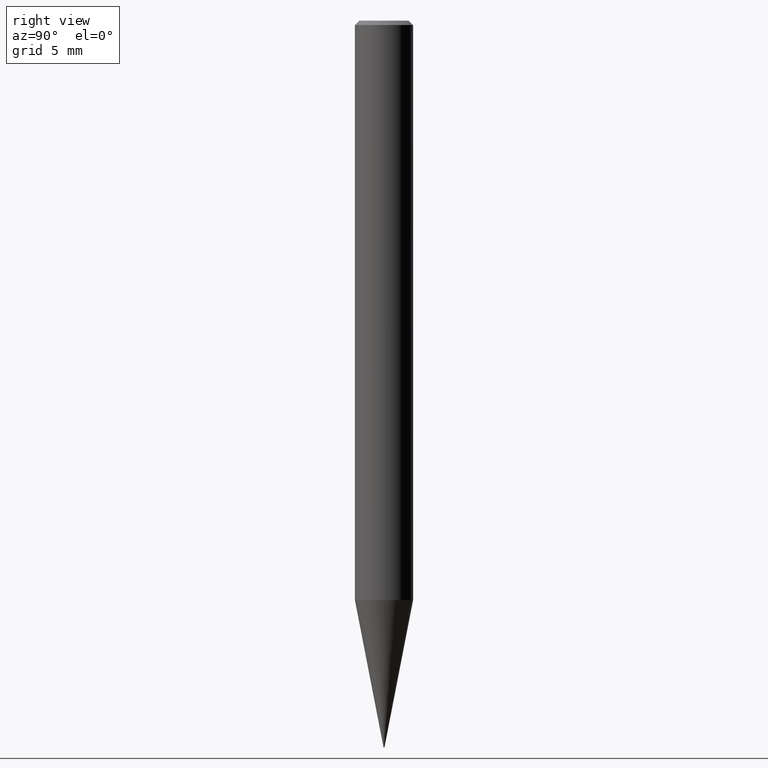
[diagram: clean part render]
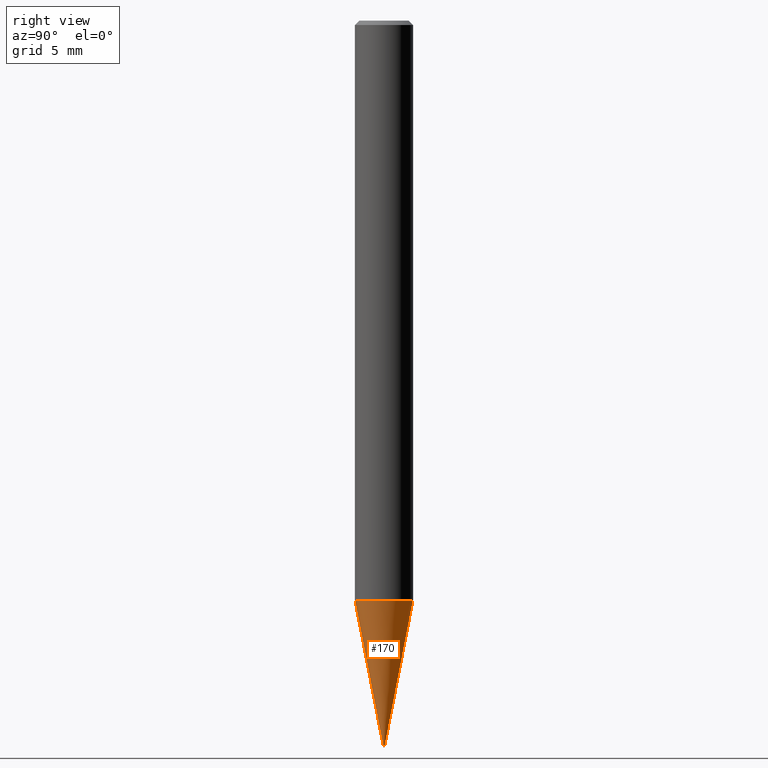
[diagram: same view with one face highlighted and labeled with its STEP entity id]
A machine part, right view. The second image highlights one B-rep face of the part: STEP entity #170.
In plain terms, the highlighted conical surface has half-angle 11 deg.
Its self-contained STEP definition (entity closure, byte-faithful):
#90=EDGE_CURVE('',#154,#144,#217,.T.);
#112=VERTEX_POINT('',#240);
#118=EDGE_CURVE('',#112,#144,#247,.T.);
#144=VERTEX_POINT('',#279);
#154=VERTEX_POINT('',#289);
#170=ADVANCED_FACE('',(#305),#306,.T.);
#176=EDGE_CURVE('',#190,#154,#313,.T.);
#188=EDGE_CURVE('',#112,#190,#328,.T.);
#190=VERTEX_POINT('',#330);
#217=LINE('',#350,#351);
#240=CARTESIAN_POINT('',(0.0,1.99995,-39.868));
#247=CIRCLE('',#389,1.99995);
#279=CARTESIAN_POINT('',(2.44915147732706E-016,-1.99995,-39.868));
#289=CARTESIAN_POINT('',(6.11690873734274E-018,-0.04995,-49.9));
#305=FACE_OUTER_BOUND('',#462,.T.);
#306=CONICAL_SURFACE('',#463,1.02495,0.191983983430966);
#313=CIRCLE('',#470,0.04995);
#328=LINE('',#488,#489);
#330=CARTESIAN_POINT('',(0.0,0.04995,-49.9));
#350=CARTESIAN_POINT('',(1.25516028235025E-016,-1.02495,-44.884));
#351=VECTOR('',#507,1.0);
#389=AXIS2_PLACEMENT_3D('',#537,#538,#539);
#462=EDGE_LOOP('',(#607,#608,#609,#610));
#463=AXIS2_PLACEMENT_3D('',#611,#612,#613);
#470=AXIS2_PLACEMENT_3D('',#623,#624,#625);
#488=CARTESIAN_POINT('',(-1.25516028235025E-016,1.02495,-44.884));
#489=VECTOR('',#649,1.0);
#507=DIRECTION('',(2.33663222250515E-017,-0.190806802137829,0.981627609767541));
#537=CARTESIAN_POINT('',(0.0,0.0,-39.868));
#538=DIRECTION('',(0.0,0.0,-1.0));
#539=DIRECTION('',(0.0,1.0,0.0));
#607=ORIENTED_EDGE('',*,*,#188,.F.);
#608=ORIENTED_EDGE('',*,*,#118,.T.);
#609=ORIENTED_EDGE('',*,*,#90,.F.);
#610=ORIENTED_EDGE('',*,*,#176,.F.);
#611=CARTESIAN_POINT('',(0.0,0.0,-44.884));
#612=DIRECTION('',(-0.0,-0.0,1.0));
#613=DIRECTION('',(0.0,1.0,0.0));
#623=CARTESIAN_POINT('',(0.0,0.0,-49.9));
#624=DIRECTION('',(0.0,0.0,-1.0));
#625=DIRECTION('',(0.0,1.0,0.0));
#649=DIRECTION('',(2.33663222250515E-017,-0.190806802137829,-0.981627609767541));